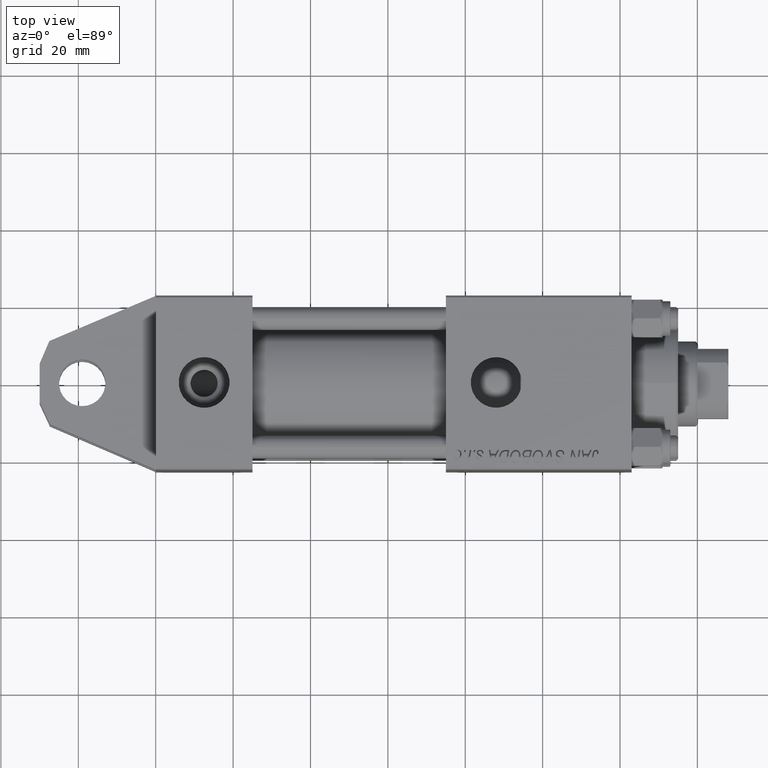
[diagram: clean part render]
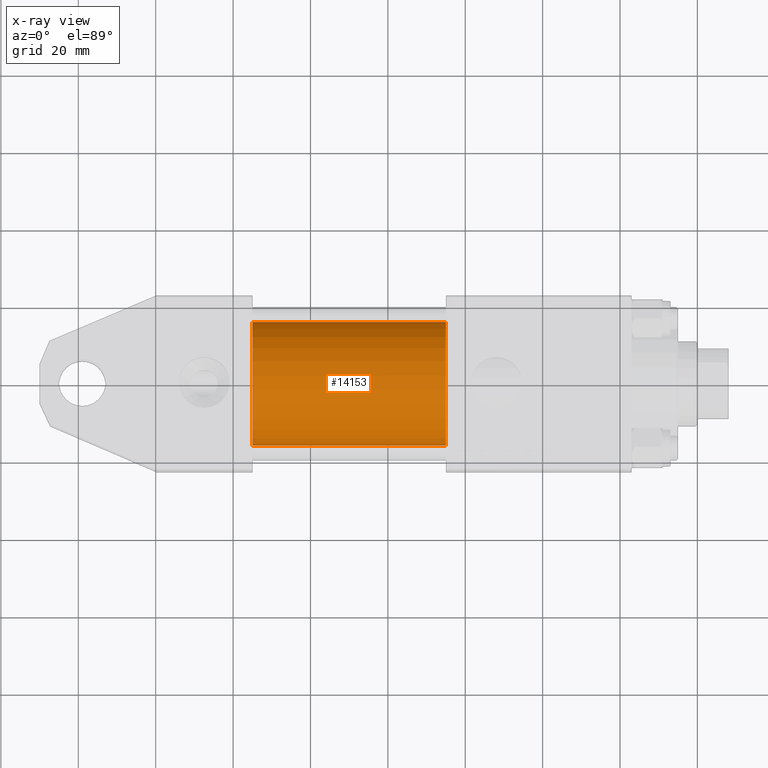
[diagram: x-ray — body ghosted, one internal face saturated and labeled with its STEP entity id]
A machine part, top view, then the same camera in x-ray: the body is ghosted and one INTERNAL B-rep face — a face not visible from any outside direction — is saturated and labeled: STEP entity #14153.
In plain terms, the highlighted cylindrical surface (partial cylindrical patch) has radius 16 mm, axis along (-1, -0, 0).
Its self-contained STEP definition (entity closure, byte-faithful):
#2008 = CARTESIAN_POINT ( 'NONE',  ( 75.00000000000001421, -3.469446951953614189E-15, 0.000000000000000000 ) ) ;
#5397 = EDGE_CURVE ( 'NONE', #12168, #47808, #42861, .T. ) ;
#7928 = ORIENTED_EDGE ( 'NONE', *, *, #38743, .F. ) ;
#12168 = VERTEX_POINT ( 'NONE', #21592 ) ;
#12762 = DIRECTION ( 'NONE',  ( 0.000000000000000000, 0.000000000000000000, -1.000000000000000000 ) ) ;
#13215 = AXIS2_PLACEMENT_3D ( 'NONE', #28850, #40142, #12762 ) ;
#13298 = DIRECTION ( 'NONE',  ( -1.000000000000000000, -0.000000000000000000, -0.000000000000000000 ) ) ;
#14153 = ADVANCED_FACE ( 'NONE', ( #28658 ), #21364, .F. ) ;
#16277 = CARTESIAN_POINT ( 'NONE',  ( 75.00000000000001421, -3.469446951953614189E-15, 16.00000000000000000 ) ) ;
#16926 = AXIS2_PLACEMENT_3D ( 'NONE', #34867, #46407, #24047 ) ;
#17095 = DIRECTION ( 'NONE',  ( 0.000000000000000000, 0.000000000000000000, 1.000000000000000000 ) ) ;
#17350 = DIRECTION ( 'NONE',  ( -1.000000000000000000, -0.000000000000000000, -0.000000000000000000 ) ) ;
#21364 = CYLINDRICAL_SURFACE ( 'NONE', #47928, 16.00000000000000000 ) ;
#21592 = CARTESIAN_POINT ( 'NONE',  ( 25.00000000000000000, -3.469446951953614189E-15, 16.00000000000000000 ) ) ;
#22286 = VERTEX_POINT ( 'NONE', #16277 ) ;
#23472 = VECTOR ( 'NONE', #13298, 1000.000000000000000 ) ;
#24047 = DIRECTION ( 'NONE',  ( 0.000000000000000000, 0.000000000000000000, -1.000000000000000000 ) ) ;
#24200 = EDGE_CURVE ( 'NONE', #22286, #41727, #44998, .T. ) ;
#24297 = CARTESIAN_POINT ( 'NONE',  ( 75.00000000000001421, -1.510012073317849255E-15, -16.00000000000000000 ) ) ;
#24605 = LINE ( 'NONE', #39668, #23472 ) ;
#28658 = FACE_OUTER_BOUND ( 'NONE', #41655, .T. ) ;
#28850 = CARTESIAN_POINT ( 'NONE',  ( 25.00000000000000000, -3.469446951953614189E-15, 0.000000000000000000 ) ) ;
#28939 = CARTESIAN_POINT ( 'NONE',  ( 25.00000000000000000, -1.510012073317849255E-15, -16.00000000000000000 ) ) ;
#33518 = CARTESIAN_POINT ( 'NONE',  ( 75.00000000000001421, -1.510012073317849255E-15, -16.00000000000000000 ) ) ;
#34867 = CARTESIAN_POINT ( 'NONE',  ( 75.00000000000001421, -3.469446951953614189E-15, 0.000000000000000000 ) ) ;
#36628 = ORIENTED_EDGE ( 'NONE', *, *, #41273, .T. ) ;
#38743 = EDGE_CURVE ( 'NONE', #22286, #12168, #24605, .T. ) ;
#38791 = VECTOR ( 'NONE', #48579, 1000.000000000000000 ) ;
#39327 = ORIENTED_EDGE ( 'NONE', *, *, #5397, .F. ) ;
#39668 = CARTESIAN_POINT ( 'NONE',  ( 75.00000000000001421, -3.469446951953614189E-15, 16.00000000000000000 ) ) ;
#40142 = DIRECTION ( 'NONE',  ( 1.000000000000000000, 0.000000000000000000, 0.000000000000000000 ) ) ;
#40526 = ORIENTED_EDGE ( 'NONE', *, *, #24200, .T. ) ;
#41273 = EDGE_CURVE ( 'NONE', #41727, #47808, #45045, .T. ) ;
#41655 = EDGE_LOOP ( 'NONE', ( #40526, #36628, #39327, #7928 ) ) ;
#41727 = VERTEX_POINT ( 'NONE', #24297 ) ;
#42861 = CIRCLE ( 'NONE', #13215, 16.00000000000000000 ) ;
#44998 = CIRCLE ( 'NONE', #16926, 16.00000000000000000 ) ;
#45045 = LINE ( 'NONE', #33518, #38791 ) ;
#46407 = DIRECTION ( 'NONE',  ( 1.000000000000000000, 0.000000000000000000, 0.000000000000000000 ) ) ;
#47808 = VERTEX_POINT ( 'NONE', #28939 ) ;
#47928 = AXIS2_PLACEMENT_3D ( 'NONE', #2008, #17350, #17095 ) ;
#48579 = DIRECTION ( 'NONE',  ( -1.000000000000000000, -0.000000000000000000, -0.000000000000000000 ) ) ;